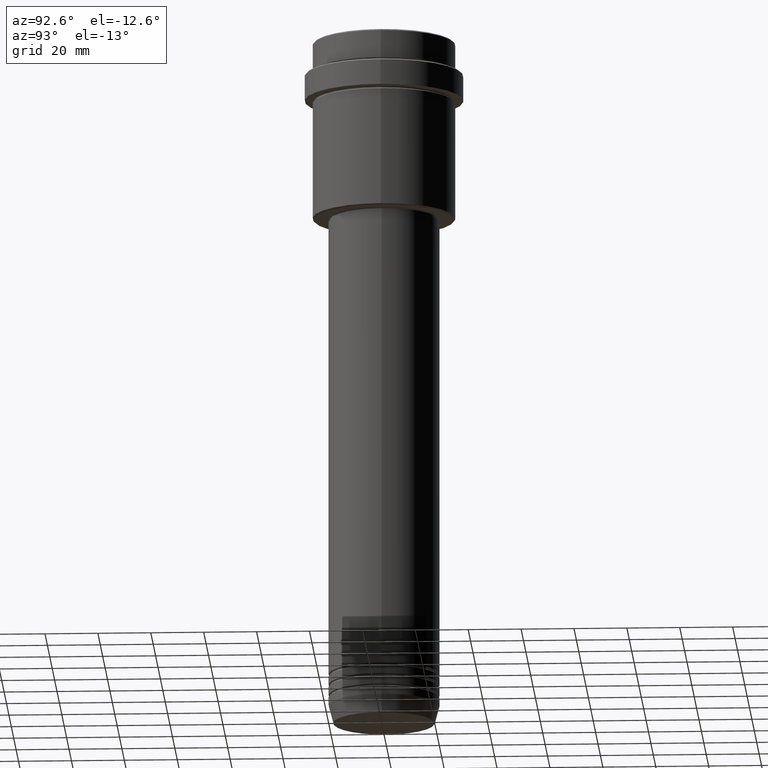
[diagram: clean part render]
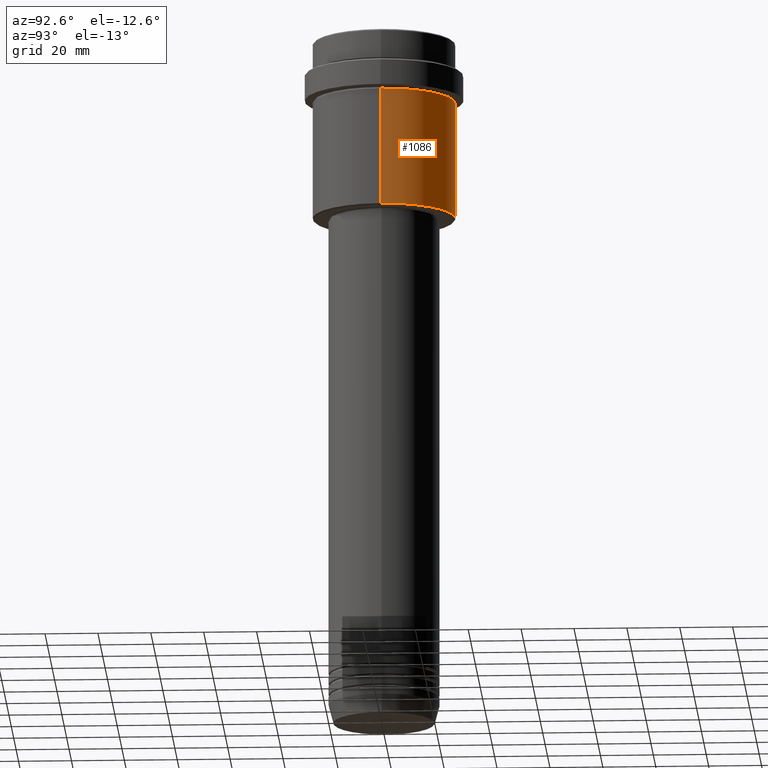
[diagram: same view with one face highlighted and labeled with its STEP entity id]
A machine part, auxiliary view. The second image highlights one B-rep face of the part: STEP entity #1086.
In plain terms, the highlighted cylindrical surface (partial cylindrical patch) has radius 27 mm, axis along (-0, -0, 1).
Its self-contained STEP definition (entity closure, byte-faithful):
#26 = FACE_OUTER_BOUND ( 'NONE', #517, .T. ) ;
#27 = VERTEX_POINT ( 'NONE', #559 ) ;
#50 = DIRECTION ( 'NONE',  ( -0.000000000000000000, -0.000000000000000000, 1.000000000000000000 ) ) ;
#52 = DIRECTION ( 'NONE',  ( -0.000000000000000000, -0.000000000000000000, 1.000000000000000000 ) ) ;
#111 = EDGE_CURVE ( 'NONE', #27, #872, #1227, .T. ) ;
#140 = DIRECTION ( 'NONE',  ( -0.000000000000000000, -0.000000000000000000, 1.000000000000000000 ) ) ;
#191 = CARTESIAN_POINT ( 'NONE',  ( -26.99999999999999645, 3.306546357697853339E-15, -23.00000000000000000 ) ) ;
#192 = EDGE_CURVE ( 'NONE', #27, #685, #717, .T. ) ;
#212 = AXIS2_PLACEMENT_3D ( 'NONE', #603, #1147, #463 ) ;
#215 = VERTEX_POINT ( 'NONE', #191 ) ;
#289 = ORIENTED_EDGE ( 'NONE', *, *, #967, .T. ) ;
#307 = CIRCLE ( 'NONE', #1119, 26.99999999999999645 ) ;
#320 = DIRECTION ( 'NONE',  ( -0.000000000000000000, -0.000000000000000000, 1.000000000000000000 ) ) ;
#335 = DIRECTION ( 'NONE',  ( 1.000000000000000000, 0.000000000000000000, 0.000000000000000000 ) ) ;
#347 = VECTOR ( 'NONE', #50, 1000.000000000000000 ) ;
#357 = ORIENTED_EDGE ( 'NONE', *, *, #111, .T. ) ;
#394 = ORIENTED_EDGE ( 'NONE', *, *, #883, .F. ) ;
#448 = AXIS2_PLACEMENT_3D ( 'NONE', #1044, #52, #489 ) ;
#463 = DIRECTION ( 'NONE',  ( -1.000000000000000000, 0.000000000000000000, 0.000000000000000000 ) ) ;
#483 = CARTESIAN_POINT ( 'NONE',  ( -26.99999999999999645, 3.306546357697853339E-15, 0.000000000000000000 ) ) ;
#489 = DIRECTION ( 'NONE',  ( 1.000000000000000000, 0.000000000000000000, 0.000000000000000000 ) ) ;
#517 = EDGE_LOOP ( 'NONE', ( #357, #289, #394, #1405 ) ) ;
#559 = CARTESIAN_POINT ( 'NONE',  ( 26.99999999999999645, 0.000000000000000000, -67.49999999999998579 ) ) ;
#603 = CARTESIAN_POINT ( 'NONE',  ( 0.000000000000000000, 0.000000000000000000, -67.49999999999998579 ) ) ;
#629 = CARTESIAN_POINT ( 'NONE',  ( 26.99999999999999645, 0.000000000000000000, -23.00000000000000000 ) ) ;
#685 = VERTEX_POINT ( 'NONE', #629 ) ;
#717 = LINE ( 'NONE', #1333, #347 ) ;
#872 = VERTEX_POINT ( 'NONE', #1092 ) ;
#883 = EDGE_CURVE ( 'NONE', #685, #215, #307, .T. ) ;
#967 = EDGE_CURVE ( 'NONE', #872, #215, #1127, .T. ) ;
#1044 = CARTESIAN_POINT ( 'NONE',  ( 0.000000000000000000, 0.000000000000000000, 0.000000000000000000 ) ) ;
#1086 = ADVANCED_FACE ( 'NONE', ( #26 ), #1343, .T. ) ;
#1092 = CARTESIAN_POINT ( 'NONE',  ( -26.99999999999999645, 3.306546357697853339E-15, -67.49999999999998579 ) ) ;
#1119 = AXIS2_PLACEMENT_3D ( 'NONE', #1308, #320, #335 ) ;
#1127 = LINE ( 'NONE', #483, #1143 ) ;
#1143 = VECTOR ( 'NONE', #140, 1000.000000000000000 ) ;
#1147 = DIRECTION ( 'NONE',  ( -0.000000000000000000, -0.000000000000000000, 1.000000000000000000 ) ) ;
#1227 = CIRCLE ( 'NONE', #212, 26.99999999999999645 ) ;
#1308 = CARTESIAN_POINT ( 'NONE',  ( 0.000000000000000000, 0.000000000000000000, -23.00000000000000000 ) ) ;
#1333 = CARTESIAN_POINT ( 'NONE',  ( 26.99999999999999645, 0.000000000000000000, 0.000000000000000000 ) ) ;
#1343 = CYLINDRICAL_SURFACE ( 'NONE', #448, 26.99999999999999645 ) ;
#1405 = ORIENTED_EDGE ( 'NONE', *, *, #192, .F. ) ;